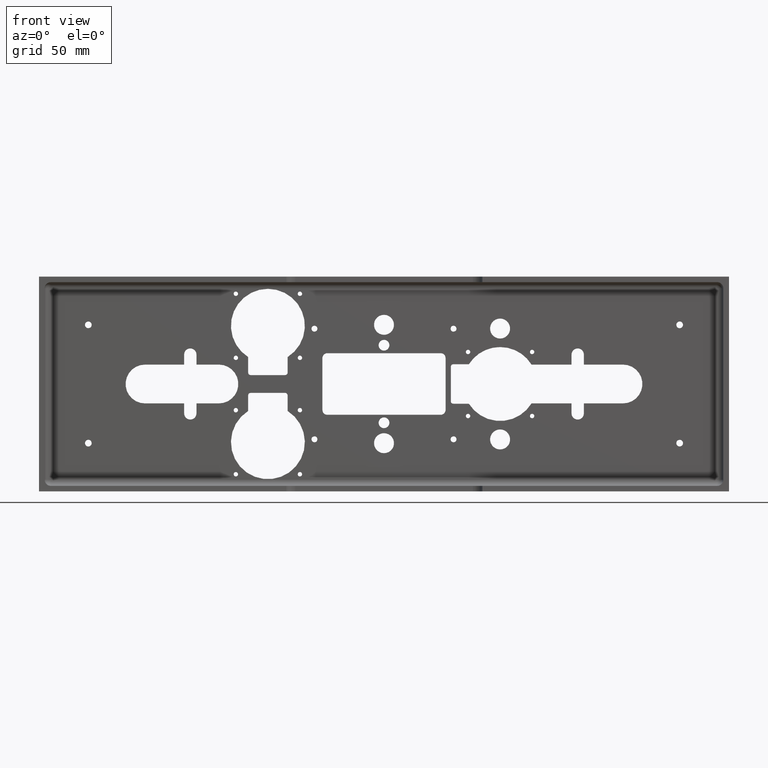
[diagram: clean part render]
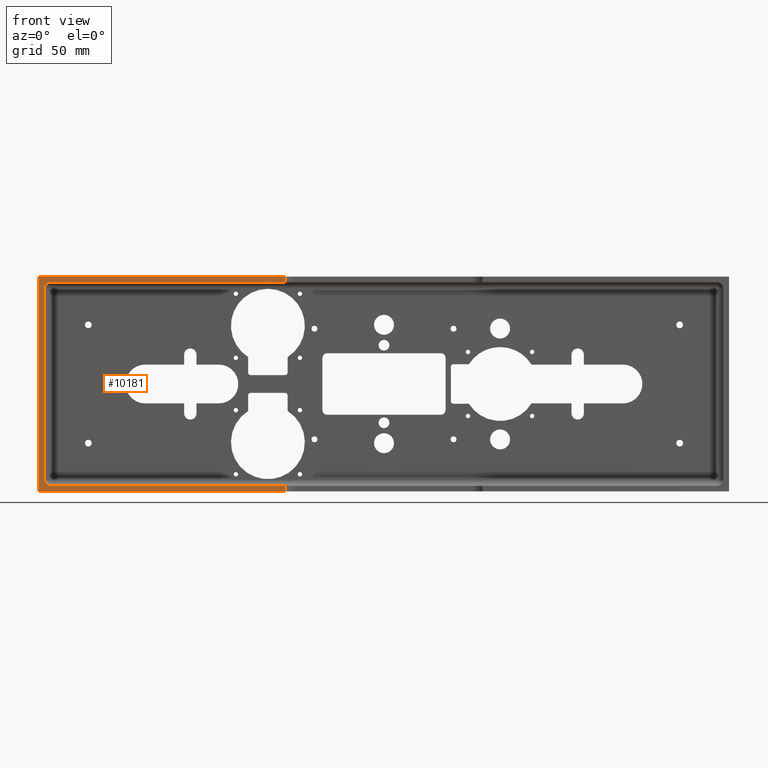
[diagram: same view with one face highlighted and labeled with its STEP entity id]
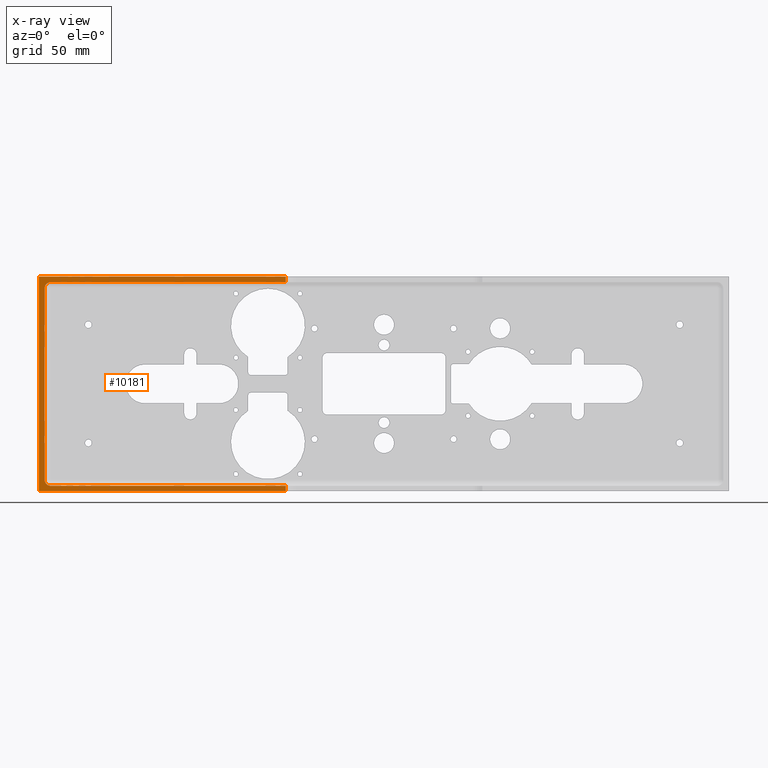
[diagram: x-ray of the same camera — body ghosted, the highlighted face saturated]
A machine part, front view. The second image highlights one B-rep face of the part: STEP entity #10181.
The next image is the same camera in x-ray: the body ghosted, the highlighted face saturated — about 0% of this face is hidden behind the body in this view.
In plain terms, the highlighted planar face has unit normal (0, 1, 0).
Its self-contained STEP definition (entity closure, byte-faithful):
#1753 = CARTESIAN_POINT ( 'NONE',  ( -2.000000000000000000, -2.299999999999999400, -2.067000000000000200 ) ) ;
#1766 = DIRECTION ( 'NONE',  ( 0.0000000000000000000, 0.0000000000000000000, 1.000000000000000000 ) ) ;
#1772 = DIRECTION ( 'NONE',  ( 0.0000000000000000000, 1.000000000000000000, 0.0000000000000000000 ) ) ;
#1773 = PLANE ( 'NONE',  #12535 ) ;
#1777 = CARTESIAN_POINT ( 'NONE',  ( -7.000000000000000000, -2.299999999999999800, 2.180000000000000200 ) ) ;
#1996 = DIRECTION ( 'NONE',  ( -1.000000000000000000, 0.0000000000000000000, 0.0000000000000000000 ) ) ;
#1998 = CARTESIAN_POINT ( 'NONE',  ( -7.000000000000000000, -2.299999999999999800, -2.180000000000000200 ) ) ;
#2004 = CARTESIAN_POINT ( 'NONE',  ( -7.000000000000000000, -2.299999999999999800, 2.180000000000000200 ) ) ;
#2007 = DIRECTION ( 'NONE',  ( 1.000000000000000000, 0.0000000000000000000, 0.0000000000000000000 ) ) ;
#2723 = DIRECTION ( 'NONE',  ( 0.0000000000000000000, 1.000000000000000000, 0.0000000000000000000 ) ) ;
#2727 = CARTESIAN_POINT ( 'NONE',  ( -6.887000000000000500, -2.299999999999999800, -1.941999999999999100 ) ) ;
#2804 = CARTESIAN_POINT ( 'NONE',  ( -6.761999999999999600, -2.299999999999998900, 1.942000000000000200 ) ) ;
#2813 = DIRECTION ( 'NONE',  ( 0.0000000000000000000, 0.0000000000000000000, 1.000000000000000000 ) ) ;
#3455 = CIRCLE ( 'NONE', #14007, 0.1249999999999999000 ) ;
#3934 = VECTOR ( 'NONE', #13037, 39.37007874015748100 ) ;
#3983 = CIRCLE ( 'NONE', #12575, 0.1249999999999999000 ) ;
#4075 = LINE ( 'NONE', #13036, #3934 ) ;
#4127 = VECTOR ( 'NONE', #13057, 39.37007874015748100 ) ;
#4210 = LINE ( 'NONE', #13058, #4127 ) ;
#4511 = DIRECTION ( 'NONE',  ( 0.0000000000000000000, 0.0000000000000000000, 1.000000000000000000 ) ) ;
#4530 = CARTESIAN_POINT ( 'NONE',  ( -6.762000000000000500, -2.299999999999998900, -1.942000000000000200 ) ) ;
#4878 = DIRECTION ( 'NONE',  ( 0.0000000000000000000, 1.000000000000000000, 0.0000000000000000000 ) ) ;
#5264 = ORIENTED_EDGE ( 'NONE', *, *, #13877, .T. ) ;
#5304 = ORIENTED_EDGE ( 'NONE', *, *, #13848, .F. ) ;
#5339 = ORIENTED_EDGE ( 'NONE', *, *, #14128, .T. ) ;
#5468 = ORIENTED_EDGE ( 'NONE', *, *, #13845, .F. ) ;
#5498 = ORIENTED_EDGE ( 'NONE', *, *, #14120, .F. ) ;
#5569 = ORIENTED_EDGE ( 'NONE', *, *, #7079, .F. ) ;
#5895 = ORIENTED_EDGE ( 'NONE', *, *, #7107, .F. ) ;
#6117 = ORIENTED_EDGE ( 'NONE', *, *, #7011, .T. ) ;
#6128 = ORIENTED_EDGE ( 'NONE', *, *, #7071, .F. ) ;
#6131 = ORIENTED_EDGE ( 'NONE', *, *, #7407, .T. ) ;
#6509 = VERTEX_POINT ( 'NONE', #11501 ) ;
#6565 = VERTEX_POINT ( 'NONE', #11627 ) ;
#6567 = VERTEX_POINT ( 'NONE', #11672 ) ;
#6651 = VERTEX_POINT ( 'NONE', #11708 ) ;
#6661 = VERTEX_POINT ( 'NONE', #11668 ) ;
#6842 = VERTEX_POINT ( 'NONE', #12096 ) ;
#6909 = VERTEX_POINT ( 'NONE', #11539 ) ;
#6934 = VERTEX_POINT ( 'NONE', #11456 ) ;
#7011 = EDGE_CURVE ( 'NONE', #6509, #6661, #9660, .T. ) ;
#7071 = EDGE_CURVE ( 'NONE', #6651, #11499, #9306, .T. ) ;
#7079 = EDGE_CURVE ( 'NONE', #6565, #11557, #9327, .T. ) ;
#7107 = EDGE_CURVE ( 'NONE', #6842, #6567, #8871, .T. ) ;
#7407 = EDGE_CURVE ( 'NONE', #6651, #11557, #3455, .T. ) ;
#7955 = VECTOR ( 'NONE', #1996, 39.37007874015748100 ) ;
#7962 = VECTOR ( 'NONE', #2007, 39.37007874015748100 ) ;
#7989 = LINE ( 'NONE', #2004, #7962 ) ;
#8000 = FACE_OUTER_BOUND ( 'NONE', #10282, .T. ) ;
#8034 = LINE ( 'NONE', #1998, #7955 ) ;
#8871 = LINE ( 'NONE', #12365, #9609 ) ;
#9054 = VECTOR ( 'NONE', #12415, 39.37007874015748100 ) ;
#9185 = VECTOR ( 'NONE', #11359, 39.37007874015748100 ) ;
#9306 = LINE ( 'NONE', #12389, #9719 ) ;
#9327 = LINE ( 'NONE', #12414, #9054 ) ;
#9609 = VECTOR ( 'NONE', #11952, 39.37007874015748100 ) ;
#9660 = LINE ( 'NONE', #11336, #9185 ) ;
#9719 = VECTOR ( 'NONE', #12393, 39.37007874015748100 ) ;
#10181 = ADVANCED_FACE ( 'NONE', ( #8000 ), #1773, .F. ) ;
#10282 = EDGE_LOOP ( 'NONE', ( #5304, #5339, #6128, #6131, #5569, #5264, #5498, #6117, #5468, #5895 ) ) ;
#11336 = CARTESIAN_POINT ( 'NONE',  ( -2.000000000000000000, -2.299999999999999400, -2.180000000000000200 ) ) ;
#11359 = DIRECTION ( 'NONE',  ( 0.0000000000000000000, 0.0000000000000000000, 1.000000000000000000 ) ) ;
#11456 = CARTESIAN_POINT ( 'NONE',  ( -2.000000000000000000, -2.299999999999999400, -2.180000000000000200 ) ) ;
#11499 = VERTEX_POINT ( 'NONE', #1753 ) ;
#11501 = CARTESIAN_POINT ( 'NONE',  ( -2.000000000000000000, -2.299999999999999400, 2.067000000000000200 ) ) ;
#11539 = CARTESIAN_POINT ( 'NONE',  ( -6.762000000000000500, -2.299999999999999800, 2.067000000000000200 ) ) ;
#11557 = VERTEX_POINT ( 'NONE', #2727 ) ;
#11627 = CARTESIAN_POINT ( 'NONE',  ( -6.887000000000000500, -2.299999999999999800, 1.942000000000000200 ) ) ;
#11668 = CARTESIAN_POINT ( 'NONE',  ( -2.000000000000000000, -2.299999999999999400, 2.180000000000000200 ) ) ;
#11672 = CARTESIAN_POINT ( 'NONE',  ( -7.000000000000000000, -2.299999999999999800, 2.180000000000000200 ) ) ;
#11708 = CARTESIAN_POINT ( 'NONE',  ( -6.762000000000000500, -2.299999999999999800, -2.067000000000000200 ) ) ;
#11952 = DIRECTION ( 'NONE',  ( 0.0000000000000000000, 0.0000000000000000000, 1.000000000000000000 ) ) ;
#12096 = CARTESIAN_POINT ( 'NONE',  ( -7.000000000000000000, -2.299999999999999800, -2.180000000000000200 ) ) ;
#12365 = CARTESIAN_POINT ( 'NONE',  ( -7.000000000000000000, -2.299999999999999800, -2.180000000000000200 ) ) ;
#12389 = CARTESIAN_POINT ( 'NONE',  ( 6.887000000000000500, -2.299999999999999800, -2.067000000000000200 ) ) ;
#12393 = DIRECTION ( 'NONE',  ( 1.000000000000000000, 0.0000000000000000000, 0.0000000000000000000 ) ) ;
#12414 = CARTESIAN_POINT ( 'NONE',  ( -6.887000000000000500, -2.299999999999999800, 2.067000000000000200 ) ) ;
#12415 = DIRECTION ( 'NONE',  ( 0.0000000000000000000, 0.0000000000000000000, -1.000000000000000000 ) ) ;
#12535 = AXIS2_PLACEMENT_3D ( 'NONE', #1777, #1772, #1766 ) ;
#12575 = AXIS2_PLACEMENT_3D ( 'NONE', #2804, #2723, #2813 ) ;
#13036 = CARTESIAN_POINT ( 'NONE',  ( 6.887000000000000500, -2.299999999999999800, 2.067000000000000200 ) ) ;
#13037 = DIRECTION ( 'NONE',  ( -1.000000000000000000, 0.0000000000000000000, 0.0000000000000000000 ) ) ;
#13057 = DIRECTION ( 'NONE',  ( 0.0000000000000000000, 0.0000000000000000000, 1.000000000000000000 ) ) ;
#13058 = CARTESIAN_POINT ( 'NONE',  ( -2.000000000000000000, -2.299999999999999400, -2.180000000000000200 ) ) ;
#13845 = EDGE_CURVE ( 'NONE', #6567, #6661, #7989, .T. ) ;
#13848 = EDGE_CURVE ( 'NONE', #6934, #6842, #8034, .T. ) ;
#13877 = EDGE_CURVE ( 'NONE', #6565, #6909, #3983, .T. ) ;
#14007 = AXIS2_PLACEMENT_3D ( 'NONE', #4530, #4878, #4511 ) ;
#14120 = EDGE_CURVE ( 'NONE', #6509, #6909, #4075, .T. ) ;
#14128 = EDGE_CURVE ( 'NONE', #6934, #11499, #4210, .T. ) ;